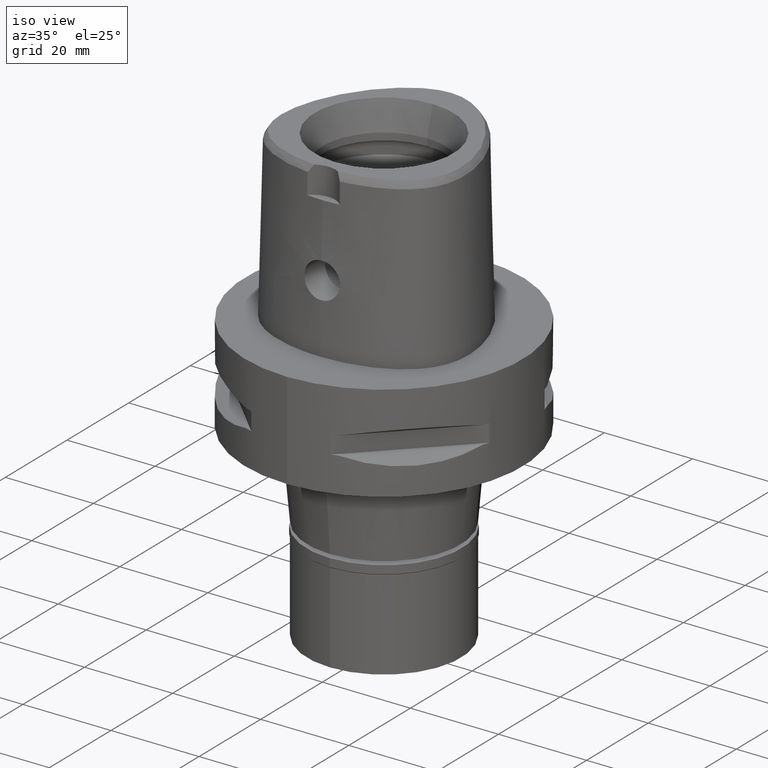
[diagram: clean part render]
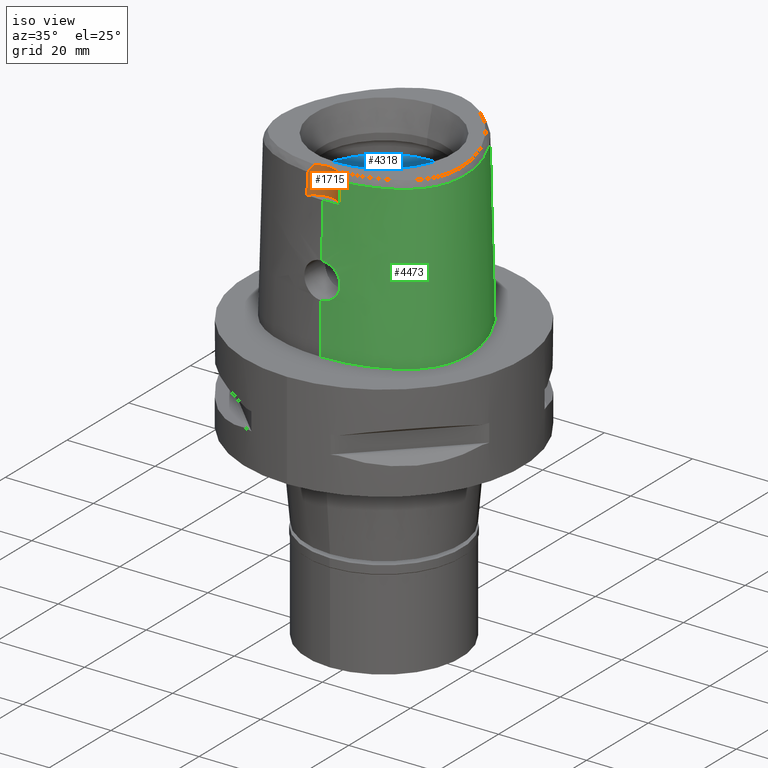
[diagram: same view with three faces highlighted in distinct colors, each labeled with its STEP entity id]
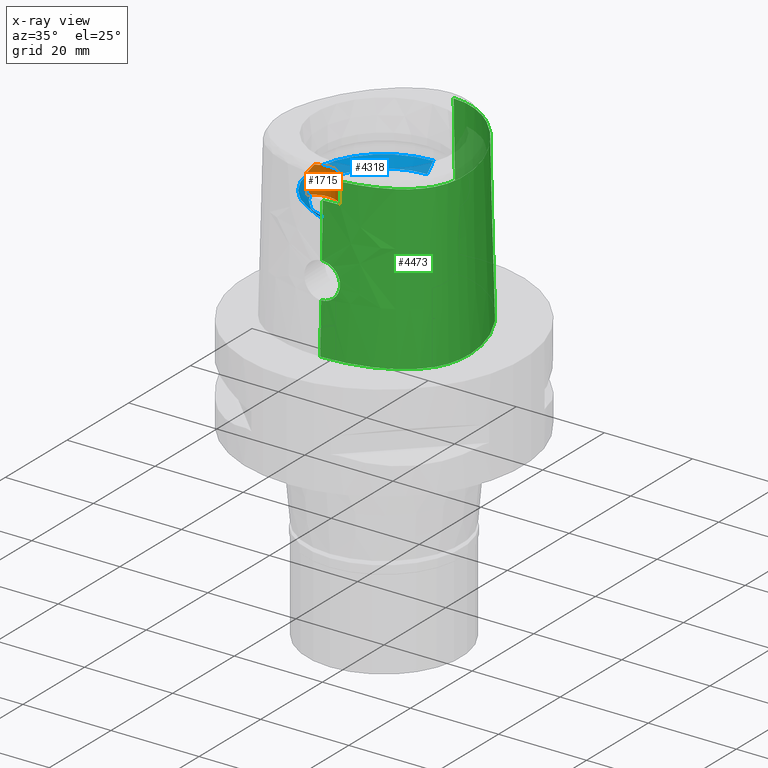
[diagram: x-ray of the same camera — body ghosted, the three highlighted faces saturated]
A machine part, iso view with three faces highlighted in distinct colors.
The next image is the same camera in x-ray (body ghosted, the three faces saturated) — at least one of them is partly hidden behind the body in this view.
Their STEP definitions:

[orange] entity #1715 — the highlighted cylindrical surface (edge-blend (fillet) strip) has radius 5 mm, axis along (0, 0, 1).
#33 = CARTESIAN_POINT ( 'NONE',  ( -3.339321438850199275, -19.25325016372376652, 37.10705438593483052 ) ) ;
#83 = ORIENTED_EDGE ( 'NONE', *, *, #710, .T. ) ;
#110 = CARTESIAN_POINT ( 'NONE',  ( -3.014271304826237952, -18.99139391531467425, 37.59976690310816139 ) ) ;
#141 = DIRECTION ( 'NONE',  ( 0.0000000000000000000, 0.0000000000000000000, 1.000000000000000000 ) ) ;
#192 = CARTESIAN_POINT ( 'NONE',  ( 3.637738219117000238, -19.56971420299000286, 36.52185956443999970 ) ) ;
#443 = EDGE_CURVE ( 'NONE', #3478, #3049, #3626, .T. ) ;
#471 = B_SPLINE_CURVE_WITH_KNOTS ( 'NONE', 3,
 ( #1375, #2826, #4320, #3962 ),
 .UNSPECIFIED., .F., .F.,
 ( 4, 4 ),
 ( 0.0000000000000000000, 1.000000000000000000 ),
 .UNSPECIFIED. ) ;
#646 = ORIENTED_EDGE ( 'NONE', *, *, #443, .T. ) ;
#650 = CARTESIAN_POINT ( 'NONE',  ( 3.736696120837999402, -19.67778323291999953, 31.80000004972999861 ) ) ;
#710 = EDGE_CURVE ( 'NONE', #4533, #3002, #2618, .T. ) ;
#718 = VERTEX_POINT ( 'NONE', #192 ) ;
#863 = EDGE_CURVE ( 'NONE', #3002, #718, #1739, .T. ) ;
#925 = CARTESIAN_POINT ( 'NONE',  ( 0.0000000000000000000, -23.00000000000000000, 38.00000000000000000 ) ) ;
#1073 = CARTESIAN_POINT ( 'NONE',  ( 3.012640326650000144, -19.00260279988999912, 37.57941311356000114 ) ) ;
#1175 = AXIS2_PLACEMENT_3D ( 'NONE', #1338, #2833, #2861 ) ;
#1293 = DIRECTION ( 'NONE',  ( 0.0000000000000000000, 1.000000000000000000, 0.0000000000000000000 ) ) ;
#1326 = ORIENTED_EDGE ( 'NONE', *, *, #863, .T. ) ;
#1338 = CARTESIAN_POINT ( 'NONE',  ( 0.0000000000000000000, -23.00000000000000000, 31.80000000000000071 ) ) ;
#1375 = CARTESIAN_POINT ( 'NONE',  ( -3.637738201363999835, -19.56971413236999879, 36.52186244848000030 ) ) ;
#1586 = ORIENTED_EDGE ( 'NONE', *, *, #2339, .T. ) ;
#1601 = CARTESIAN_POINT ( 'NONE',  ( 2.682287482605000051, -18.78036330228999873, 38.00000000000000000 ) ) ;
#1604 = CARTESIAN_POINT ( 'NONE',  ( -3.637738201363999835, -19.56971413236999879, 36.52186244848000030 ) ) ;
#1715 = ADVANCED_FACE ( 'NONE', ( #3455 ), #2678, .F. ) ;
#1739 = B_SPLINE_CURVE_WITH_KNOTS ( 'NONE', 3,
 ( #650, #3228, #2503, #3997 ),
 .UNSPECIFIED., .F., .F.,
 ( 4, 4 ),
 ( 0.0000000000000000000, 1.000000000000000000 ),
 .UNSPECIFIED. ) ;
#1916 = CARTESIAN_POINT ( 'NONE',  ( 3.538010507513000391, -19.46395528683000009, 36.71742413868999932 ) ) ;
#1986 = DIRECTION ( 'NONE',  ( 0.0000000000000000000, 0.0000000000000000000, 1.000000000000000000 ) ) ;
#2031 = CARTESIAN_POINT ( 'NONE',  ( 0.0000000000000000000, -23.00000000000000000, 38.00000000000000000 ) ) ;
#2126 = CARTESIAN_POINT ( 'NONE',  ( 2.682287482605000051, -18.78036330228999873, 38.00000000000000000 ) ) ;
#2339 = EDGE_CURVE ( 'NONE', #718, #3478, #4574, .T. ) ;
#2503 = CARTESIAN_POINT ( 'NONE',  ( 3.671249151389730514, -19.60525176641679579, 34.94790639287000289 ) ) ;
#2618 = CIRCLE ( 'NONE', #1175, 5.000000000000000000 ) ;
#2678 = CYLINDRICAL_SURFACE ( 'NONE', #4188, 5.000000000000000888 ) ;
#2826 = CARTESIAN_POINT ( 'NONE',  ( -3.671249123513567802, -19.60525173594972514, 34.94790829898666829 ) ) ;
#2833 = DIRECTION ( 'NONE',  ( 0.0000000000000000000, 0.0000000000000000000, -1.000000000000000000 ) ) ;
#2861 = DIRECTION ( 'NONE',  ( -0.7473444622798740555, 0.6644367951126772809, 0.0000000000000000000 ) ) ;
#2936 = EDGE_CURVE ( 'NONE', #3298, #4533, #471, .T. ) ;
#3002 = VERTEX_POINT ( 'NONE', #4423 ) ;
#3029 = CARTESIAN_POINT ( 'NONE',  ( -3.637738201363999835, -19.56971413236999879, 36.52186244848000030 ) ) ;
#3049 = VERTEX_POINT ( 'NONE', #3220 ) ;
#3192 = EDGE_CURVE ( 'NONE', #3049, #3298, #3884, .T. ) ;
#3220 = CARTESIAN_POINT ( 'NONE',  ( -2.682279906006999948, -18.78035848609999903, 38.00000000000000000 ) ) ;
#3228 = CARTESIAN_POINT ( 'NONE',  ( 3.704239288984441103, -19.64128042389065598, 33.37395322129999897 ) ) ;
#3232 = CARTESIAN_POINT ( 'NONE',  ( 3.332729182524000411, -19.26476283843000203, 37.08770890129000719 ) ) ;
#3298 = VERTEX_POINT ( 'NONE', #3029 ) ;
#3455 = FACE_OUTER_BOUND ( 'NONE', #4183, .T. ) ;
#3478 = VERTEX_POINT ( 'NONE', #1601 ) ;
#3502 = DIRECTION ( 'NONE',  ( 0.0000000000000000000, 1.000000000000000000, 0.0000000000000000000 ) ) ;
#3561 = CARTESIAN_POINT ( 'NONE',  ( -3.736722311398999796, -19.67781602443999844, 31.80000000000000071 ) ) ;
#3626 = CIRCLE ( 'NONE', #3709, 5.000000000000000888 ) ;
#3709 = AXIS2_PLACEMENT_3D ( 'NONE', #925, #1986, #1293 ) ;
#3884 = B_SPLINE_CURVE_WITH_KNOTS ( 'NONE', 3,
 ( #4572, #110, #33, #1604 ),
 .UNSPECIFIED., .F., .F.,
 ( 4, 4 ),
 ( 0.0000000000000000000, 1.000000000000000000 ),
 .UNSPECIFIED. ) ;
#3962 = CARTESIAN_POINT ( 'NONE',  ( -3.736722311398999796, -19.67781602443999844, 31.80000000000000071 ) ) ;
#3997 = CARTESIAN_POINT ( 'NONE',  ( 3.637738219117000238, -19.56971420299000286, 36.52185956443999970 ) ) ;
#4023 = CARTESIAN_POINT ( 'NONE',  ( 2.792917461950000124, -18.85068722589999624, 37.86662718771999891 ) ) ;
#4183 = EDGE_LOOP ( 'NONE', ( #4700, #4184, #83, #1326, #1586, #646 ) ) ;
#4184 = ORIENTED_EDGE ( 'NONE', *, *, #2936, .T. ) ;
#4188 = AXIS2_PLACEMENT_3D ( 'NONE', #2031, #141, #3502 ) ;
#4320 = CARTESIAN_POINT ( 'NONE',  ( -3.704239276368590961, -19.64128040965313460, 33.37395414949332917 ) ) ;
#4423 = CARTESIAN_POINT ( 'NONE',  ( 3.736696120837999402, -19.67778323291999953, 31.80000004972999861 ) ) ;
#4483 = CARTESIAN_POINT ( 'NONE',  ( 3.637738219117000238, -19.56971420299000286, 36.52185956443999970 ) ) ;
#4533 = VERTEX_POINT ( 'NONE', #3561 ) ;
#4572 = CARTESIAN_POINT ( 'NONE',  ( -2.682279906006999948, -18.78035848609999903, 38.00000000000000000 ) ) ;
#4574 = B_SPLINE_CURVE_WITH_KNOTS ( 'NONE', 3,
 ( #4483, #1916, #3232, #1073, #4023, #2126 ),
 .UNSPECIFIED., .F., .F.,
 ( 4, 1, 1, 4 ),
 ( 0.0000000000000000000, 0.3333333333333000081, 0.6666666666667000474, 1.000000000000000000 ),
 .UNSPECIFIED. ) ;
#4700 = ORIENTED_EDGE ( 'NONE', *, *, #3192, .T. ) ;

[blue] entity #4318 — the highlighted conical surface has half-angle 45 deg.
#175 = DIRECTION ( 'NONE',  ( 0.0000000000000000000, 1.000000000000000000, 0.0000000000000000000 ) ) ;
#290 = CARTESIAN_POINT ( 'NONE',  ( 0.0000000000000000000, 14.00000000000000000, 24.19999999999999929 ) ) ;
#389 = CARTESIAN_POINT ( 'NONE',  ( 0.0000000000000000000, -14.00000000000000000, 24.19999999999999929 ) ) ;
#461 = CARTESIAN_POINT ( 'NONE',  ( 0.0000000000000000000, 0.0000000000000000000, 26.20000000000000284 ) ) ;
#629 = LINE ( 'NONE', #290, #2033 ) ;
#801 = CONICAL_SURFACE ( 'NONE', #1959, 15.00000000000000000, 0.7853981633972997312 ) ;
#900 = ORIENTED_EDGE ( 'NONE', *, *, #4447, .T. ) ;
#1022 = CIRCLE ( 'NONE', #3010, 14.00000000000000000 ) ;
#1027 = DIRECTION ( 'NONE',  ( 0.0000000000000000000, 0.7071067811865474617, 0.7071067811865474617 ) ) ;
#1335 = CARTESIAN_POINT ( 'NONE',  ( 0.0000000000000000000, 0.0000000000000000000, 25.19999999999999929 ) ) ;
#1350 = EDGE_CURVE ( 'NONE', #4584, #3394, #1022, .T. ) ;
#1358 = ORIENTED_EDGE ( 'NONE', *, *, #1350, .F. ) ;
#1514 = DIRECTION ( 'NONE',  ( 0.0000000000000000000, -1.000000000000000000, 0.0000000000000000000 ) ) ;
#1847 = CARTESIAN_POINT ( 'NONE',  ( 0.0000000000000000000, -16.00000000000000000, 26.20000000000000284 ) ) ;
#1959 = AXIS2_PLACEMENT_3D ( 'NONE', #1335, #2742, #3113 ) ;
#2033 = VECTOR ( 'NONE', #1027, 1000.000000000000114 ) ;
#2044 = ORIENTED_EDGE ( 'NONE', *, *, #2622, .F. ) ;
#2089 = CARTESIAN_POINT ( 'NONE',  ( 0.0000000000000000000, 14.00000000000000000, 24.19999999999999929 ) ) ;
#2162 = VERTEX_POINT ( 'NONE', #1847 ) ;
#2418 = DIRECTION ( 'NONE',  ( 0.0000000000000000000, 0.0000000000000000000, 1.000000000000000000 ) ) ;
#2441 = CARTESIAN_POINT ( 'NONE',  ( 0.0000000000000000000, -14.00000000000000000, 24.19999999999999929 ) ) ;
#2622 = EDGE_CURVE ( 'NONE', #3394, #2162, #4077, .T. ) ;
#2714 = VECTOR ( 'NONE', #4508, 1000.000000000000114 ) ;
#2721 = FACE_OUTER_BOUND ( 'NONE', #2759, .T. ) ;
#2742 = DIRECTION ( 'NONE',  ( 0.0000000000000000000, 0.0000000000000000000, 1.000000000000000000 ) ) ;
#2759 = EDGE_LOOP ( 'NONE', ( #1358, #900, #3763, #2044 ) ) ;
#3010 = AXIS2_PLACEMENT_3D ( 'NONE', #3911, #2418, #175 ) ;
#3113 = DIRECTION ( 'NONE',  ( 0.0000000000000000000, 1.000000000000000000, 0.0000000000000000000 ) ) ;
#3394 = VERTEX_POINT ( 'NONE', #2441 ) ;
#3491 = AXIS2_PLACEMENT_3D ( 'NONE', #461, #4481, #1514 ) ;
#3493 = CIRCLE ( 'NONE', #3491, 16.00000000000000000 ) ;
#3640 = VERTEX_POINT ( 'NONE', #3855 ) ;
#3763 = ORIENTED_EDGE ( 'NONE', *, *, #3998, .F. ) ;
#3855 = CARTESIAN_POINT ( 'NONE',  ( 0.0000000000000000000, 16.00000000000000000, 26.20000000000000284 ) ) ;
#3911 = CARTESIAN_POINT ( 'NONE',  ( 0.0000000000000000000, 0.0000000000000000000, 24.19999999999999929 ) ) ;
#3998 = EDGE_CURVE ( 'NONE', #2162, #3640, #3493, .T. ) ;
#4077 = LINE ( 'NONE', #389, #2714 ) ;
#4318 = ADVANCED_FACE ( 'NONE', ( #2721 ), #801, .F. ) ;
#4447 = EDGE_CURVE ( 'NONE', #4584, #3640, #629, .T. ) ;
#4481 = DIRECTION ( 'NONE',  ( 0.0000000000000000000, 0.0000000000000000000, -1.000000000000000000 ) ) ;
#4508 = DIRECTION ( 'NONE',  ( 0.0000000000000000000, -0.7071067811865474617, 0.7071067811865474617 ) ) ;
#4584 = VERTEX_POINT ( 'NONE', #2089 ) ;

[green] entity #4473 — the highlighted face is a freeform B-spline surface patch.
#21 = CARTESIAN_POINT ( 'NONE',  ( 17.25769851990999726, 9.963736537435000429, 37.25232037342000524 ) ) ;
#26 = CARTESIAN_POINT ( 'NONE',  ( 1.567643479931288608, -20.15909880202845628, 19.23430287573082964 ) ) ;
#42 = CARTESIAN_POINT ( 'NONE',  ( 2.373090313646000205, 22.37624345246999980, 37.25232037342000524 ) ) ;
#66 = CARTESIAN_POINT ( 'NONE',  ( 5.105252915868999430, 22.54305024181000050, -0.7304376543807999944 ) ) ;
#70 = CARTESIAN_POINT ( 'NONE',  ( 1.721606405228959469, -20.15334541369669097, 19.16617653797909071 ) ) ;
#123 = CARTESIAN_POINT ( 'NONE',  ( 18.56841065782704092, -14.16937988888225952, -3.519438220402678480E-07 ) ) ;
#125 = ORIENTED_EDGE ( 'NONE', *, *, #3127, .T. ) ;
#161 = CARTESIAN_POINT ( 'NONE',  ( 20.93173253017243240, -10.60431640983400392, -3.519438220402678480E-07 ) ) ;
#185 = CARTESIAN_POINT ( 'NONE',  ( 20.96392248520999857, -8.820258309790999007, 24.59140103081999840 ) ) ;
#192 = CARTESIAN_POINT ( 'NONE',  ( 3.637738219117000238, -19.56971420299000286, 36.52185956443999970 ) ) ;
#219 = CARTESIAN_POINT ( 'NONE',  ( 3.511585999113924217, -20.16191773290391964, 13.47802491229509769 ) ) ;
#244 = CARTESIAN_POINT ( 'NONE',  ( 4.037422722202891556, -20.06213174819040646, 15.17473757910389054 ) ) ;
#268 = CARTESIAN_POINT ( 'NONE',  ( 14.52531264169000025, -16.95413749747000054, 11.93048168822000044 ) ) ;
#272 = CARTESIAN_POINT ( 'NONE',  ( 4.027607884482683254, -20.04257368151950303, 16.00063048732030779 ) ) ;
#294 = CARTESIAN_POINT ( 'NONE',  ( 4.047792456306170905, -20.05613555099904133, 15.36275286138569385 ) ) ;
#315 = CARTESIAN_POINT ( 'NONE',  ( -0.4439347118023999617, -19.74161835622999916, 37.25232037342000524 ) ) ;
#319 = CARTESIAN_POINT ( 'NONE',  ( 3.833646868325900403, -20.04415781675447050, 16.80908465166983135 ) ) ;
#346 = LINE ( 'NONE', #4310, #3027 ) ;
#349 = CARTESIAN_POINT ( 'NONE',  ( 2.975950211661155365, -20.09221376681365001, 18.24753197173562924 ) ) ;
#355 = CARTESIAN_POINT ( 'NONE',  ( 21.07429999882883465, -0.4408303635841155921, 36.52186680739939106 ) ) ;
#368 = CARTESIAN_POINT ( 'NONE',  ( 6.175998593184999663, -19.37631789889000089, 37.25232037342000524 ) ) ;
#377 = CARTESIAN_POINT ( 'NONE',  ( 10.91891095220982066, -18.03046396092974035, 36.52186680739939106 ) ) ;
#390 = CARTESIAN_POINT ( 'NONE',  ( 10.75753573773999960, 19.18839675703000225, -0.7304376543807999944 ) ) ;
#393 = CARTESIAN_POINT ( 'NONE',  ( 3.015068172342731501, -20.08994482624845546, 18.20431863581336174 ) ) ;
#400 = CARTESIAN_POINT ( 'NONE',  ( 2.376843874104339172, 22.39422497745032459, 36.52186680739939106 ) ) ;
#418 = CARTESIAN_POINT ( 'NONE',  ( 21.99640701531999909, -0.2778990163364000177, -0.7304376543807999944 ) ) ;
#424 = CARTESIAN_POINT ( 'NONE',  ( 1.579880197482522064, -20.15867238187385624, 19.22915299087206975 ) ) ;
#438 = CARTESIAN_POINT ( 'NONE',  ( 17.53318580747999889, 10.12278931556000039, 24.59140103081999840 ) ) ;
#442 = CARTESIAN_POINT ( 'NONE',  ( 3.755573977419236265, -20.04748421697156147, 17.01599372079265038 ) ) ;
#460 = CARTESIAN_POINT ( 'NONE',  ( -0.6834384092413999801, 22.83968695353999934, 24.59140103081999840 ) ) ;
#464 = CARTESIAN_POINT ( 'NONE',  ( 20.74942741711928562, 4.657187503000058015, -3.519438220402678480E-07 ) ) ;
#492 = CARTESIAN_POINT ( 'NONE',  ( 16.95889173139985573, -15.67838867882126408, -3.519438220402678480E-07 ) ) ;
#524 = EDGE_LOOP ( 'NONE', ( #3842, #125, #4556, #4553, #4016, #3125, #2717, #3568 ) ) ;
#530 = CARTESIAN_POINT ( 'NONE',  ( 21.55524826855592124, -8.996025393140344661, -3.519438220402678480E-07 ) ) ;
#545 = CARTESIAN_POINT ( 'NONE',  ( 2.438150610980000188, 22.68791642940999864, 24.59140103081999840 ) ) ;
#561 = EDGE_CURVE ( 'NONE', #3379, #1033, #1163, .T. ) ;
#609 = CARTESIAN_POINT ( 'NONE',  ( 3.723726504208451971, -20.12908480707795178, 13.90738601769078464 ) ) ;
#612 = EDGE_CURVE ( 'NONE', #3002, #1996, #3635, .T. ) ;
#624 = CARTESIAN_POINT ( 'NONE',  ( -1.826967432883000104E-12, -20.38876923348000147, 11.44999999999999929 ) ) ;
#631 = CARTESIAN_POINT ( 'NONE',  ( 2.841351562068689329, -20.24472911396075503, 12.61394346710859971 ) ) ;
#650 = CARTESIAN_POINT ( 'NONE',  ( 3.736696120837999402, -19.67778323291999953, 31.80000004972999861 ) ) ;
#655 = CARTESIAN_POINT ( 'NONE',  ( 16.38077690256000096, -14.94316457434999990, 37.25232037342000524 ) ) ;
#658 = CARTESIAN_POINT ( 'NONE',  ( 3.864753922560997257, -20.04313629976284616, 16.71272098199585088 ) ) ;
#664 = CARTESIAN_POINT ( 'NONE',  ( 17.27359236348909377, 9.972912859139857034, 36.52186680739939106 ) ) ;
#672 = CARTESIAN_POINT ( 'NONE',  ( 2.041042029990999821E-08, -19.88004246002000031, 31.80000004972000127 ) ) ;
#698 = CARTESIAN_POINT ( 'NONE',  ( 16.97022731071000123, -15.69280483065000098, -0.7304376543807999944 ) ) ;
#702 = CARTESIAN_POINT ( 'NONE',  ( 3.203763016644435080, -20.20322974170852248, 13.02154905151698649 ) ) ;
#718 = VERTEX_POINT ( 'NONE', #192 ) ;
#730 = CARTESIAN_POINT ( 'NONE',  ( 2.886659455803970875, -20.09735702616647046, 18.34072566158846129 ) ) ;
#750 = CARTESIAN_POINT ( 'NONE',  ( 21.31039828220000132, -4.105938497318000202, 37.25232037342000524 ) ) ;
#772 = CARTESIAN_POINT ( 'NONE',  ( -0.7217521647326999856, 23.47150798632999980, -0.7304376543807999944 ) ) ;
#803 = CARTESIAN_POINT ( 'NONE',  ( 7.580410839837000481, 21.33037926236000104, -0.7304376543807999944 ) ) ;
#825 = CARTESIAN_POINT ( 'NONE',  ( 10.14358072572000147, 18.45723414120000072, 37.25232037342000524 ) ) ;
#831 = CARTESIAN_POINT ( 'NONE',  ( 22.05732875196926202, -6.847636720006784472, -3.519438220402678480E-07 ) ) ;
#863 = EDGE_CURVE ( 'NONE', #3002, #718, #1739, .T. ) ;
#882 = CARTESIAN_POINT ( 'NONE',  ( 2.113823673588550722, -20.67500000879218547, -3.519438220402678480E-07 ) ) ;
#917 = CARTESIAN_POINT ( 'NONE',  ( 13.69241976179999831, 15.03666389207999821, 37.25232037342000524 ) ) ;
#927 = VERTEX_POINT ( 'NONE', #3716 ) ;
#971 = VERTEX_POINT ( 'NONE', #2619 ) ;
#983 = CARTESIAN_POINT ( 'NONE',  ( 0.5087515307362648898, -20.38532974001412512, 11.47346035737002445 ) ) ;
#1004 = CARTESIAN_POINT ( 'NONE',  ( 0.8966116947936206838, -20.37501125961648540, 11.54830101447698354 ) ) ;
#1031 = CARTESIAN_POINT ( 'NONE',  ( 3.924300776181928185, -20.09314702527190732, 14.46423348894043670 ) ) ;
#1033 = VERTEX_POINT ( 'NONE', #4502 ) ;
#1043 = CARTESIAN_POINT ( 'NONE',  ( 16.39211273426354509, -14.95758104716219883, 36.52186680739939106 ) ) ;
#1054 = CARTESIAN_POINT ( 'NONE',  ( -0.4561077449676999573, -20.69106755557000099, -0.7304376543807999944 ) ) ;
#1057 = CARTESIAN_POINT ( 'NONE',  ( 3.792886798746447852, -20.04581592835240755, 16.92075268099871721 ) ) ;
#1078 = CARTESIAN_POINT ( 'NONE',  ( 2.567016208068159333, -20.27200364631736562, 12.36657754867036729 ) ) ;
#1084 = CARTESIAN_POINT ( 'NONE',  ( -1.463675025324000219E-11, 22.56201468012000078, 36.52186680743999858 ) ) ;
#1110 = CARTESIAN_POINT ( 'NONE',  ( 20.09619608769044063, -10.23243839429730784, 36.52186680739939106 ) ) ;
#1124 = CARTESIAN_POINT ( 'NONE',  ( 1.836480382118000021, -19.76356519391000077, 37.25232037342000524 ) ) ;
#1146 = CARTESIAN_POINT ( 'NONE',  ( 20.36913774449000059, -10.35391843577999893, 24.59140103081999840 ) ) ;
#1163 = B_SPLINE_CURVE_WITH_KNOTS ( 'NONE', 3,
 ( #3090, #882, #1224, #2677, #3797, #492, #123, #2345, #1967, #161, #530, #831, #3382, #1559, #464, #3015, #4582, #3827, #2363, #4171, #1657, #1616, #4515 ),
 .UNSPECIFIED., .F., .F.,
 ( 4, 1, 1, 1, 1, 1, 1, 1, 1, 1, 1, 1, 1, 1, 1, 1, 1, 1, 1, 1, 4 ),
 ( 0.0000000000000000000, 0.08333333333348000305, 0.1666666666668000230, 0.2083333333334000115, 0.2500000000000999756, 0.2916666666666999919, 0.3125000000000000000, 0.3333333333333000081, 0.3541666666666999919, 0.3750000000000000000, 0.4166666666666999919, 0.4583333333332000326, 0.4999999999998999689, 0.5833333333332000326, 0.6666666666664999852, 0.7499999999998000488, 0.8333333333329999704, 0.8749999999997000177, 0.9166666666664000651, 0.9583333333329999704, 1.000000000000000000 ),
 .UNSPECIFIED. ) ;
#1170 = CARTESIAN_POINT ( 'NONE',  ( 21.57281239202000123, -9.001246195006000761, -0.7304376543807999944 ) ) ;
#1197 = CARTESIAN_POINT ( 'NONE',  ( 20.65879050128999950, -10.48283620274999883, 11.93048168822000044 ) ) ;
#1201 = CARTESIAN_POINT ( 'NONE',  ( 3.670597385436424442, -20.05147252372691113, 17.22404581896334363 ) ) ;
#1224 = CARTESIAN_POINT ( 'NONE',  ( 6.341471020775136580, -20.29812500871732084, -3.519438220402679009E-07 ) ) ;
#1286 = CARTESIAN_POINT ( 'NONE',  ( 20.46725045963000156, 4.555493654929000158, 11.93048168822000044 ) ) ;
#1305 = CARTESIAN_POINT ( 'NONE',  ( 19.86834428180999979, 4.339653657228000228, 37.25232037342000524 ) ) ;
#1347 = CARTESIAN_POINT ( 'NONE',  ( 3.603976443201508673, -20.14812720047174821, 13.65118046636059113 ) ) ;
#1369 = CARTESIAN_POINT ( 'NONE',  ( 4.044273721195485116, -20.05891866814916824, 15.26936688914002538 ) ) ;
#1386 = FACE_OUTER_BOUND ( 'NONE', #524, .T. ) ;
#1388 = CARTESIAN_POINT ( 'NONE',  ( 1.534316080845153474, -20.34781749051813904, 11.75187837086506093 ) ) ;
#1395 = EDGE_CURVE ( 'NONE', #1932, #971, #4450, .T. ) ;
#1397 = CARTESIAN_POINT ( 'NONE',  ( 20.67704204633940535, -8.734985285293644708, 36.52186680739939106 ) ) ;
#1410 = CARTESIAN_POINT ( 'NONE',  ( 19.15132525901000093, -12.46323152247000010, 24.59140103081999840 ) ) ;
#1414 = CARTESIAN_POINT ( 'NONE',  ( 3.771386012542129684, -20.04676156959495970, 16.97636602834736053 ) ) ;
#1437 = CARTESIAN_POINT ( 'NONE',  ( -0.4479923895242000076, -20.05810142267999652, 24.59140103081999840 ) ) ;
#1441 = CARTESIAN_POINT ( 'NONE',  ( 2.711691569780576572, -20.25804592810637672, 12.49155873507324621 ) ) ;
#1458 = CARTESIAN_POINT ( 'NONE',  ( 19.54161177586999898, -11.28235481743000079, 37.25232037342000524 ) ) ;
#1459 = B_SPLINE_CURVE_WITH_KNOTS ( 'NONE', 3,
 ( #1084, #1469, #400, #3294, #1811, #3273, #2852, #664, #3662, #355, #2880, #2923, #1397, #1110, #2568, #4066, #2209, #1043, #3685, #377, #1853, #2136, #3612 ),
 .UNSPECIFIED., .F., .F.,
 ( 4, 1, 1, 1, 1, 1, 1, 1, 1, 1, 1, 1, 1, 1, 1, 1, 1, 1, 1, 1, 4 ),
 ( 0.0000000000000000000, 0.04382683003322433712, 0.08765366006602780258, 0.1314804900989366143, 0.1753073201318454122, 0.2629609801974524541, 0.3506146402631648562, 0.4382683003288770918, 0.5259219603945894939, 0.5697487904274981529, 0.6135756204601965358, 0.6574024504931053059, 0.6793158655095070664, 0.7012292805260141870, 0.7231426955424158365, 0.7450561105588175970, 0.7888829405916213400, 0.8327097706245299991, 0.8765366006573335200, 0.9641902607230669053, 1.000000000000000000 ),
 .UNSPECIFIED. ) ;
#1469 = CARTESIAN_POINT ( 'NONE',  ( 0.7901461619532076375, 22.56201467849357911, 36.52186680739939817 ) ) ;
#1483 = CARTESIAN_POINT ( 'NONE',  ( 14.36818031250000161, -16.67825726519999918, 24.59140103081999840 ) ) ;
#1513 = CARTESIAN_POINT ( 'NONE',  ( 10.55288406706999993, 18.94467588509000322, 11.93048168822000044 ) ) ;
#1535 = CARTESIAN_POINT ( 'NONE',  ( -0.7025952869871000539, 23.15559746994000179, 11.93048168822000044 ) ) ;
#1539 = CARTESIAN_POINT ( 'NONE',  ( 2.583378382920984873, -20.11475760907390509, 18.64739958325358060 ) ) ;
#1556 = CARTESIAN_POINT ( 'NONE',  ( 4.750826189423999146, 21.65775798043000222, 37.25232037342000524 ) ) ;
#1559 = CARTESIAN_POINT ( 'NONE',  ( 21.97832648657396248, -0.2810937484606424452, -3.519438220402678480E-07 ) ) ;
#1569 = VECTOR ( 'NONE', #4329, 1000.000000000000114 ) ;
#1616 = CARTESIAN_POINT ( 'NONE',  ( 0.8548392429320488262, 23.47500000880000215, -3.519438220402678480E-07 ) ) ;
#1657 = CARTESIAN_POINT ( 'NONE',  ( 2.564517728765120186, 23.29328125865878718, -3.519438220402678480E-07 ) ) ;
#1670 = CARTESIAN_POINT ( 'NONE',  ( 21.26836743862000034, -8.910752252398999929, 11.93048168822000044 ) ) ;
#1697 = CARTESIAN_POINT ( 'NONE',  ( 3.736696120837999402, -19.67778323291999953, 31.80000004972999861 ) ) ;
#1705 = CARTESIAN_POINT ( 'NONE',  ( 3.632834779428071315, -20.14369342289558062, 13.70863273807749927 ) ) ;
#1733 = CARTESIAN_POINT ( 'NONE',  ( 2.948868927777127169, -20.23326953825477403, 12.72080257443722218 ) ) ;
#1739 = B_SPLINE_CURVE_WITH_KNOTS ( 'NONE', 3,
 ( #650, #3228, #2503, #3997 ),
 .UNSPECIFIED., .F., .F.,
 ( 4, 4 ),
 ( 0.0000000000000000000, 1.000000000000000000 ),
 .UNSPECIFIED. ) ;
#1753 = CARTESIAN_POINT ( 'NONE',  ( 20.94844325809000196, -10.61175396972999962, -0.7304376543807999944 ) ) ;
#1756 = CARTESIAN_POINT ( 'NONE',  ( 3.953259643468217011, -20.04133012920760137, 16.38976245724405345 ) ) ;
#1772 = CARTESIAN_POINT ( 'NONE',  ( -0.6657939546889000137, -19.73734223026999857, 37.25232037342000524 ) ) ;
#1774 = CARTESIAN_POINT ( 'NONE',  ( 3.325306337116460842, -20.18751101871034592, 13.18704982732561248 ) ) ;
#1798 = CARTESIAN_POINT ( 'NONE',  ( 14.68244497087999889, -17.23001772974000190, -0.7304376543807999944 ) ) ;
#1811 = CARTESIAN_POINT ( 'NONE',  ( 7.108589361576983734, 20.52412316394618941, 36.52186680739939106 ) ) ;
#1823 = CARTESIAN_POINT ( 'NONE',  ( 6.288476582118000202, -20.00290573232999947, 11.93048168822000044 ) ) ;
#1826 = CARTESIAN_POINT ( 'NONE',  ( 3.751591194192677836, -20.04766969730218662, 17.02581310133406589 ) ) ;
#1843 = CARTESIAN_POINT ( 'NONE',  ( 11.23887130230999887, -18.91049775954000367, -0.7304376543807999944 ) ) ;
#1853 = CARTESIAN_POINT ( 'NONE',  ( 7.300578979383887557, -19.07170738130822230, 36.52186680739939106 ) ) ;
#1867 = CARTESIAN_POINT ( 'NONE',  ( 20.16779737072000245, 4.447573656079000237, 24.59140103081999840 ) ) ;
#1872 = CARTESIAN_POINT ( 'NONE',  ( 3.566550373950287067, -20.05748105839062490, 17.43706565681205944 ) ) ;
#1892 = CARTESIAN_POINT ( 'NONE',  ( 7.259695449652999955, 20.78233566726000348, 24.59140103081999840 ) ) ;
#1897 = CARTESIAN_POINT ( 'NONE',  ( 1.682593708784102526, -20.15487016635301032, 19.18413263587381223 ) ) ;
#1913 = CARTESIAN_POINT ( 'NONE',  ( 7.099337754561000580, 20.50831386970999759, 37.25232037342000524 ) ) ;
#1917 = CARTESIAN_POINT ( 'NONE',  ( 3.274926665392455138, -20.07472025487568246, 17.88722119739921723 ) ) ;
#1932 = VERTEX_POINT ( 'NONE', #624 ) ;
#1935 = CARTESIAN_POINT ( 'NONE',  ( -0.6642815314958000483, 22.52377643714000044, 37.25232037342000524 ) ) ;
#1936 = CARTESIAN_POINT ( 'NONE',  ( 6.838609506018792443E-09, -20.08420636276242277, 23.63333344114128920 ) ) ;
#1967 = CARTESIAN_POINT ( 'NONE',  ( 20.34961799320004516, -11.74885742627617091, -3.519438220402678480E-07 ) ) ;
#1996 = VERTEX_POINT ( 'NONE', #672 ) ;
#2002 = EDGE_CURVE ( 'NONE', #1932, #3379, #4699, .T. ) ;
#2020 = CARTESIAN_POINT ( 'NONE',  ( -0.4685451971773999524, 23.16976075642000055, 11.93048168822000044 ) ) ;
#2030 = CARTESIAN_POINT ( 'NONE',  ( 2.503154195450401076, -19.81241979351012361, 31.80000012137777077 ) ) ;
#2081 = CARTESIAN_POINT ( 'NONE',  ( 3.729708922353295097, -20.12808847094932574, 13.92144695074586025 ) ) ;
#2105 = CARTESIAN_POINT ( 'NONE',  ( 4.049418847093934737, -20.05437568687474581, 15.42471688643932382 ) ) ;
#2127 = CARTESIAN_POINT ( 'NONE',  ( 18.35112155619999896, -13.96357037257999956, 11.93048168822000044 ) ) ;
#2130 = CARTESIAN_POINT ( 'NONE',  ( 2.624939756680496838, -20.26655316160304920, 12.41484986907755150 ) ) ;
#2136 = CARTESIAN_POINT ( 'NONE',  ( 4.467522181836838691, -19.48130276147620776, 36.52186680739939817 ) ) ;
#2147 = CARTESIAN_POINT ( 'NONE',  ( -0.6840631436170000468, -20.68668116328000295, -0.7304376543807999944 ) ) ;
#2178 = CARTESIAN_POINT ( 'NONE',  ( 1.561701417396871738, -20.15930341713675844, 19.23678932674767239 ) ) ;
#2200 = CARTESIAN_POINT ( 'NONE',  ( -0.6718836843316000618, -20.05378854127000210, 24.59140103081999840 ) ) ;
#2204 = CARTESIAN_POINT ( 'NONE',  ( 2.297699941746913055, -20.12840054679260149, 18.84585608873927853 ) ) ;
#2209 = CARTESIAN_POINT ( 'NONE',  ( 17.90324024157999006, -13.53935104436585313, 36.52186680739939106 ) ) ;
#2221 = CARTESIAN_POINT ( 'NONE',  ( 2.568271205648999800, 23.31126238327999900, -0.7304376543807999944 ) ) ;
#2225 = CARTESIAN_POINT ( 'NONE',  ( 2.884234419356145551, -20.09749625558477604, 18.34319101387002249 ) ) ;
#2243 = CARTESIAN_POINT ( 'NONE',  ( 21.36961505010999929, -0.3886497833393999790, 24.59140103081999840 ) ) ;
#2267 = CARTESIAN_POINT ( 'NONE',  ( 21.62788404305000256, -4.104079498228999867, 24.59140103081999840 ) ) ;
#2288 = CARTESIAN_POINT ( 'NONE',  ( 0.6155340740079000561, 23.51883497691000002, -0.7304376543807999944 ) ) ;
#2345 = CARTESIAN_POINT ( 'NONE',  ( 19.64947366576182830, -12.82525391143864013, -3.519438220402678480E-07 ) ) ;
#2363 = CARTESIAN_POINT ( 'NONE',  ( 7.571159438808491515, 21.31457032011850572, -3.519438220402678480E-07 ) ) ;
#2438 = CARTESIAN_POINT ( 'NONE',  ( 1.524357715489996545, -20.34835182637561601, 11.74781298389268436 ) ) ;
#2459 = CARTESIAN_POINT ( 'NONE',  ( 2.755033359777194768, -20.25370943475173036, 12.53098791197496631 ) ) ;
#2484 = CARTESIAN_POINT ( 'NONE',  ( 10.91263708051000059, -18.01320801298999896, 37.25232037342000524 ) ) ;
#2487 = CARTESIAN_POINT ( 'NONE',  ( 3.921908031808776229, -20.04162622780743419, 16.51941043673691567 ) ) ;
#2503 = CARTESIAN_POINT ( 'NONE',  ( 3.671249151389730514, -19.60525176641679579, 34.94790639287000289 ) ) ;
#2508 = CARTESIAN_POINT ( 'NONE',  ( 19.66427014574999887, -12.83600704636999978, -0.7304376543807999944 ) ) ;
#2509 = DIRECTION ( 'NONE',  ( 2.239957748160960195E-12, 0.02499051290944955331, -0.9996876883629820520 ) ) ;
#2511 = CARTESIAN_POINT ( 'NONE',  ( 4.000511561325166277, -20.07456186655893049, 14.85500429493886365 ) ) ;
#2528 = CARTESIAN_POINT ( 'NONE',  ( -0.6779734139742999988, -20.37023485227999586, 11.93048168822000044 ) ) ;
#2532 = CARTESIAN_POINT ( 'NONE',  ( 2.393838366598201706, -20.28769208760995113, 12.22988199623816108 ) ) ;
#2568 = CARTESIAN_POINT ( 'NONE',  ( 19.55745538000856953, -11.29150212657910402, 36.52186680739939106 ) ) ;
#2599 = CARTESIAN_POINT ( 'NONE',  ( 13.93560868105000061, 15.24203792875999852, 24.59140103081999840 ) ) ;
#2600 = CARTESIAN_POINT ( 'NONE',  ( 6.818614578713344982E-09, -19.98212988583485483, 27.71666688228254216 ) ) ;
#2619 = CARTESIAN_POINT ( 'NONE',  ( 0.0000000000000000000, -20.18628283968999781, 19.55000000000000071 ) ) ;
#2624 = CARTESIAN_POINT ( 'NONE',  ( 21.13154883260999739, -6.714587069843999778, 37.25232037342000524 ) ) ;
#2651 = CARTESIAN_POINT ( 'NONE',  ( 18.08416038262999948, 10.44089487182000120, -0.7304376543807999944 ) ) ;
#2674 = CARTESIAN_POINT ( 'NONE',  ( 2.041042029990999821E-08, -19.88004246002000031, 31.80000004972000127 ) ) ;
#2677 = CARTESIAN_POINT ( 'NONE',  ( 11.23259757029823014, -18.89324219580533537, -3.519438220402678480E-07 ) ) ;
#2717 = ORIENTED_EDGE ( 'NONE', *, *, #2002, .T. ) ;
#2793 = CARTESIAN_POINT ( 'NONE',  ( -1.826967432883000104E-12, -20.38876923348000147, 11.44999999999999929 ) ) ;
#2800 = CARTESIAN_POINT ( 'NONE',  ( -1.826967432883000104E-12, -20.38876923348000147, 11.44999999999999929 ) ) ;
#2820 = CARTESIAN_POINT ( 'NONE',  ( 1.316421966468894977, -20.35878114982438802, 11.66885636529475256 ) ) ;
#2838 = CARTESIAN_POINT ( 'NONE',  ( 1.870063862862999970, -20.39691452781000081, 11.93048168822000044 ) ) ;
#2841 = CARTESIAN_POINT ( 'NONE',  ( 3.163129671095931794, -20.20825321968238697, 12.96989580161385369 ) ) ;
#2852 = CARTESIAN_POINT ( 'NONE',  ( 13.70645019738495840, 15.04851265230045065, 36.52186680739939106 ) ) ;
#2869 = CARTESIAN_POINT ( 'NONE',  ( 19.81622826543999949, -11.44090472220999999, 24.59140103081999840 ) ) ;
#2872 = CARTESIAN_POINT ( 'NONE',  ( 0.2513178043693615749, -20.38876923348000503, 11.44999999999999929 ) ) ;
#2880 = CARTESIAN_POINT ( 'NONE',  ( 21.32871516740384976, -4.105831245034257115, 36.52186680739939106 ) ) ;
#2896 = CARTESIAN_POINT ( 'NONE',  ( 2.279206475143934707, -20.29726703133780319, 12.14958802852537367 ) ) ;
#2913 = CARTESIAN_POINT ( 'NONE',  ( 18.89485281564000019, -12.27684376052000026, 37.25232037342000524 ) ) ;
#2923 = CARTESIAN_POINT ( 'NONE',  ( 21.14970177530687323, -6.717195943318910345, 36.52186680739939106 ) ) ;
#2935 = CARTESIAN_POINT ( 'NONE',  ( 14.21104798330000030, -16.40237703292000404, 37.25232037342000524 ) ) ;
#2964 = CARTESIAN_POINT ( 'NONE',  ( 17.80867309505000051, 10.28184209368999902, 11.93048168822000044 ) ) ;
#2987 = CARTESIAN_POINT ( 'NONE',  ( 21.05621906750999983, -0.4440251668407999563, 37.25232037342000524 ) ) ;
#2991 = CARTESIAN_POINT ( 'NONE',  ( 1.850515310469470043, -20.14814249513660727, 19.10377707056542818 ) ) ;
#3002 = VERTEX_POINT ( 'NONE', #4423 ) ;
#3012 = CARTESIAN_POINT ( 'NONE',  ( 2.503210908314000172, 22.99958940634000015, 11.93048168822000044 ) ) ;
#3015 = CARTESIAN_POINT ( 'NONE',  ( 18.06826689292752164, 10.43171875442610030, -3.519438220402678480E-07 ) ) ;
#3027 = VECTOR ( 'NONE', #2509, 1000.000000000000114 ) ;
#3042 = CARTESIAN_POINT ( 'NONE',  ( 20.65947753180000390, -8.729764367183999951, 37.25232037342000524 ) ) ;
#3090 = CARTESIAN_POINT ( 'NONE',  ( -1.465435788041999934E-11, -20.67499999999999716, 1.633878217906999793E-13 ) ) ;
#3125 = ORIENTED_EDGE ( 'NONE', *, *, #1395, .F. ) ;
#3126 = CARTESIAN_POINT ( 'NONE',  ( -0.4431573407612000581, 22.53713874477000090, 37.25232037342000524 ) ) ;
#3127 = EDGE_CURVE ( 'NONE', #927, #718, #1459, .T. ) ;
#3193 = CARTESIAN_POINT ( 'NONE',  ( 4.019030320121493638, -20.06913119212766716, 14.98404767005685478 ) ) ;
#3214 = CARTESIAN_POINT ( 'NONE',  ( 3.442230566568433847, -20.17176368746357440, 13.36150714886689350 ) ) ;
#3228 = CARTESIAN_POINT ( 'NONE',  ( 3.704239288984441103, -19.64128042389065598, 33.37395322129999897 ) ) ;
#3233 = CARTESIAN_POINT ( 'NONE',  ( 16.77374384132999907, -15.44292474522000091, 11.93048168822000044 ) ) ;
#3236 = CARTESIAN_POINT ( 'NONE',  ( 4.050842720081512027, -20.04624518054259141, 15.74101907652574539 ) ) ;
#3264 = CARTESIAN_POINT ( 'NONE',  ( 16.57726037194999691, -15.19304465977999818, 24.59140103081999840 ) ) ;
#3267 = CARTESIAN_POINT ( 'NONE',  ( 1.428592104154088993, -20.35332632815585185, 11.71005578160097826 ) ) ;
#3273 = CARTESIAN_POINT ( 'NONE',  ( 10.15538781007051483, 18.47129526703178470, 36.52186680739939106 ) ) ;
#3286 = CARTESIAN_POINT ( 'NONE',  ( 20.36546124458000051, -11.75800453175999927, -0.7304376543807999944 ) ) ;
#3289 = CARTESIAN_POINT ( 'NONE',  ( 3.139123092388822922, -20.08270807397856217, 18.06003391346363429 ) ) ;
#3294 = CARTESIAN_POINT ( 'NONE',  ( 4.757642236485000176, 21.67478320247475665, 36.52186680739939106 ) ) ;
#3306 = CARTESIAN_POINT ( 'NONE',  ( 6.344715576585000072, -20.31619964905000231, -0.7304376543807999944 ) ) ;
#3329 = CARTESIAN_POINT ( 'NONE',  ( 0.5826623303163001033, 22.88447442312000035, 24.59140103081999840 ) ) ;
#3336 = CARTESIAN_POINT ( 'NONE',  ( 3.091191640007693309, -20.08551573943389457, 18.11781124534847720 ) ) ;
#3356 = CARTESIAN_POINT ( 'NONE',  ( 4.868968431572000100, 21.95285540088999809, 24.59140103081999840 ) ) ;
#3360 = CARTESIAN_POINT ( 'NONE',  ( 1.557928352114629877, -20.15943256128280581, 19.23836383805013384 ) ) ;
#3378 = CARTESIAN_POINT ( 'NONE',  ( 20.76670354854000067, 4.663413653779999279, -0.7304376543807999944 ) ) ;
#3379 = VERTEX_POINT ( 'NONE', #3933 ) ;
#3382 = CARTESIAN_POINT ( 'NONE',  ( 22.24453908737247332, -4.100468749947764557, -3.519438220402678480E-07 ) ) ;
#3383 = CARTESIAN_POINT ( 'NONE',  ( 2.928417867131441366, -20.09495605916598748, 18.29777786823272123 ) ) ;
#3403 = CARTESIAN_POINT ( 'NONE',  ( 21.68301103271999963, -0.3332743998379000261, 11.93048168822000044 ) ) ;
#3495 = CARTESIAN_POINT ( 'NONE',  ( -0.4558512689693000053, 22.85344975059999939, 24.59140103081999840 ) ) ;
#3529 = CARTESIAN_POINT ( 'NONE',  ( 3.037532553903743882, -20.22328996317165206, 12.81799286589134823 ) ) ;
#3552 = CARTESIAN_POINT ( 'NONE',  ( 3.845860894269472752, -20.10859464497285387, 14.19872868901472174 ) ) ;
#3568 = ORIENTED_EDGE ( 'NONE', *, *, #561, .T. ) ;
#3580 = CARTESIAN_POINT ( 'NONE',  ( 1.853272122491000040, -20.08023986086000079, 24.59140103081999840 ) ) ;
#3582 = CARTESIAN_POINT ( 'NONE',  ( 4.049868334437865869, -20.05357338911061049, 15.45438420366725119 ) ) ;
#3612 = CARTESIAN_POINT ( 'NONE',  ( 3.637738219117000238, -19.56971420299000286, 36.52185956443999970 ) ) ;
#3622 = CARTESIAN_POINT ( 'NONE',  ( -0.4520500672458999669, -20.37458448912000009, 11.93048168822000044 ) ) ;
#3625 = CARTESIAN_POINT ( 'NONE',  ( 1.484501164526380368, -20.35045784434739602, 11.73180785645017643 ) ) ;
#3635 = B_SPLINE_CURVE_WITH_KNOTS ( 'NONE', 3,
 ( #1697, #2030, #4260, #4722 ),
 .UNSPECIFIED., .F., .F.,
 ( 4, 4 ),
 ( 0.0000000000000000000, 1.000000000000000000 ),
 .UNSPECIFIED. ) ;
#3652 = CARTESIAN_POINT ( 'NONE',  ( 18.12052904698999711, -13.74516028010000035, 24.59140103081999840 ) ) ;
#3662 = CARTESIAN_POINT ( 'NONE',  ( 19.88562079789317139, 4.345879946636573621, 36.52186680739939106 ) ) ;
#3675 = CARTESIAN_POINT ( 'NONE',  ( 1.886855603234999901, -20.71358919476000082, -0.7304376543807999944 ) ) ;
#3679 = CARTESIAN_POINT ( 'NONE',  ( 1.030765520131602164, -20.17735599388189982, 19.45771471319597623 ) ) ;
#3685 = CARTESIAN_POINT ( 'NONE',  ( 14.22011350746102387, -16.41829354688003662, 36.52186680739939106 ) ) ;
#3698 = CARTESIAN_POINT ( 'NONE',  ( 22.07548129048999996, -6.850245535395000473, -0.7304376543807999944 ) ) ;
#3702 = CARTESIAN_POINT ( 'NONE',  ( 1.605758537264378560, -20.15775078181249924, 19.21813315662351940 ) ) ;
#3716 = CARTESIAN_POINT ( 'NONE',  ( -1.463675025324000219E-11, 22.56201468012000078, 36.52186680743999858 ) ) ;
#3722 = CARTESIAN_POINT ( 'NONE',  ( 21.94536980389999670, -4.102220499140999621, 11.93048168822000044 ) ) ;
#3729 = CARTESIAN_POINT ( 'NONE',  ( 2.904172583272469854, -20.09635100409874298, 18.32284545437682510 ) ) ;
#3747 = CARTESIAN_POINT ( 'NONE',  ( 22.26285556475000149, -4.100361500052000174, -0.7304376543807999944 ) ) ;
#3769 = CARTESIAN_POINT ( 'NONE',  ( -0.4812391253855000106, 23.48607176224000170, -0.7304376543807999944 ) ) ;
#3785 = EDGE_CURVE ( 'NONE', #927, #1033, #346, .T. ) ;
#3794 = CARTESIAN_POINT ( 'NONE',  ( 0.0000000000000000000, -20.18628283968999781, 19.55000000000000071 ) ) ;
#3797 = CARTESIAN_POINT ( 'NONE',  ( 14.67337964856386812, -17.21410157016247666, -3.519438220402678480E-07 ) ) ;
#3827 = CARTESIAN_POINT ( 'NONE',  ( 10.74572891627478732, 19.17433594426985977, -3.519438220402678480E-07 ) ) ;
#3842 = ORIENTED_EDGE ( 'NONE', *, *, #3785, .F. ) ;
#3863 = CARTESIAN_POINT ( 'NONE',  ( 0.5990982021621000797, 23.20165470002000063, 11.93048168822000044 ) ) ;
#3919 = EDGE_CURVE ( 'NONE', #1996, #971, #4284, .T. ) ;
#3932 = CARTESIAN_POINT ( 'NONE',  ( 3.714672160221192954, -20.13058695501625550, 13.88627057557268252 ) ) ;
#3933 = CARTESIAN_POINT ( 'NONE',  ( -1.465435788041999934E-11, -20.67499999999999716, 1.633878217906999793E-13 ) ) ;
#3954 = CARTESIAN_POINT ( 'NONE',  ( 1.731125023576418620, -20.33718559577235396, 11.83280940399677661 ) ) ;
#3983 = CARTESIAN_POINT ( 'NONE',  ( 2.849868961132530298, -20.24382510866817597, 12.62235958625939780 ) ) ;
#3997 = CARTESIAN_POINT ( 'NONE',  ( 3.637738219117000238, -19.56971420299000286, 36.52185956443999970 ) ) ;
#4007 = CARTESIAN_POINT ( 'NONE',  ( 1.508420850606395192, -20.34919826422073896, 11.74137786069494638 ) ) ;
#4016 = ORIENTED_EDGE ( 'NONE', *, *, #3919, .T. ) ;
#4024 = CARTESIAN_POINT ( 'NONE',  ( 6.232237587651999533, -19.68961181561000018, 24.59140103081999840 ) ) ;
#4066 = CARTESIAN_POINT ( 'NONE',  ( 18.90964962507984737, -12.28759713487575134, 36.52186680739939106 ) ) ;
#4078 = CARTESIAN_POINT ( 'NONE',  ( 4.987110673721000254, 22.24795282135000463, 11.93048168822000044 ) ) ;
#4099 = CARTESIAN_POINT ( 'NONE',  ( 7.420053144745000218, 21.05635746481000226, 11.93048168822000044 ) ) ;
#4104 = CARTESIAN_POINT ( 'NONE',  ( 1.557528585400485222, -20.15944609186948711, 19.23852986055522862 ) ) ;
#4124 = CARTESIAN_POINT ( 'NONE',  ( 14.42198651954000077, 15.65278600211999738, -0.7304376543807999944 ) ) ;
#4130 = CARTESIAN_POINT ( 'NONE',  ( 3.354800088553786086, -20.06997527849127749, 17.77273350791968554 ) ) ;
#4147 = CARTESIAN_POINT ( 'NONE',  ( 14.17879760029000025, 15.44741196544000061, 11.93048168822000044 ) ) ;
#4153 = CARTESIAN_POINT ( 'NONE',  ( 2.893678509312381575, -20.09695393737491642, 18.33357544154613450 ) ) ;
#4171 = CARTESIAN_POINT ( 'NONE',  ( 5.098437020567613054, 22.52602539883262622, -3.519438220402678480E-07 ) ) ;
#4215 = B_SPLINE_SURFACE_WITH_KNOTS ( 'NONE', 3, 3, ( 
 ( #2147, #2528, #2200, #1772 ),
 ( #1054, #3622, #1437, #315 ),
 ( #3675, #2838, #3580, #1124 ),
 ( #3306, #1823, #4024, #368 ),
 ( #1843, #4334, #4800, #2484 ),
 ( #1798, #268, #1483, #2935 ),
 ( #698, #3233, #3264, #655 ),
 ( #4728, #2127, #3652, #4760 ),
 ( #2508, #4436, #1410, #2913 ),
 ( #3286, #4781, #2869, #1458 ),
 ( #1753, #1197, #1146, #4480 ),
 ( #1170, #1670, #185, #3042 ),
 ( #3698, #4460, #4232, #2624 ),
 ( #3747, #3722, #2267, #750 ),
 ( #418, #3403, #2243, #2987 ),
 ( #3378, #1286, #1867, #1305 ),
 ( #2651, #2964, #438, #21 ),
 ( #4124, #4147, #2599, #917 ),
 ( #390, #1513, #4509, #825 ),
 ( #803, #4099, #1892, #1913 ),
 ( #66, #4078, #3356, #1556 ),
 ( #2221, #3012, #545, #42 ),
 ( #2288, #3863, #3329, #4618 ),
 ( #3769, #2020, #3495, #3126 ),
 ( #772, #1535, #460, #1935 ) ),
 .UNSPECIFIED., .F., .F., .F.,
 ( 4, 1, 1, 1, 1, 1, 1, 1, 1, 1, 1, 1, 1, 1, 1, 1, 1, 1, 1, 1, 1, 1, 4 ),
 ( 4, 4 ),
 ( -0.008985960173611999210, 0.0000000000000000000, 0.08333333333348000305, 0.1666666666668000230, 0.2083333333334000115, 0.2500000000000999756, 0.2916666666666999919, 0.3125000000000000000, 0.3333333333333000081, 0.3541666666666999919, 0.3750000000000000000, 0.4166666666666999919, 0.4583333333332000326, 0.4999999999998999689, 0.5833333333332000326, 0.6666666666664999852, 0.7499999999998000488, 0.8333333333329999704, 0.8749999999997000177, 0.9166666666664000651, 0.9583333333329999704, 1.000000000000000000, 1.011710456763000199 ),
 ( 1.866924847354999721E-09, 0.9999999047869000401 ),
 .UNSPECIFIED. ) ;
#4232 = CARTESIAN_POINT ( 'NONE',  ( 21.44619298523999973, -6.759806558361000306, 24.59140103081999840 ) ) ;
#4260 = CARTESIAN_POINT ( 'NONE',  ( 1.251533272179329082, -19.88005341395515657, 31.80000012137777077 ) ) ;
#4284 = B_SPLINE_CURVE_WITH_KNOTS ( 'NONE', 3,
 ( #2674, #2600, #1936, #3794 ),
 .UNSPECIFIED., .F., .F.,
 ( 4, 4 ),
 ( 0.0000000000000000000, 1.000000000000000000 ),
 .UNSPECIFIED. ) ;
#4292 = CARTESIAN_POINT ( 'NONE',  ( 3.673384755027053750, -20.13728735638314760, 13.79420378064602914 ) ) ;
#4310 = CARTESIAN_POINT ( 'NONE',  ( -1.463675025324000219E-11, 22.56201468012000078, 36.52186680743999858 ) ) ;
#4312 = CARTESIAN_POINT ( 'NONE',  ( 2.826992709295542472, -20.24624367558422477, 12.59987703158898142 ) ) ;
#4329 = DIRECTION ( 'NONE',  ( -1.119946227441976039E-12, -0.02499051295360945474, -0.9996876883618780463 ) ) ;
#4334 = CARTESIAN_POINT ( 'NONE',  ( 11.13012656171000003, -18.61140117736000121, 11.93048168822000044 ) ) ;
#4339 = CARTESIAN_POINT ( 'NONE',  ( 3.732165541854252755, -20.12767806399086368, 13.92725720088028396 ) ) ;
#4368 = CARTESIAN_POINT ( 'NONE',  ( 3.761930880153694368, -20.04719182700824476, 17.00014963063601670 ) ) ;
#4391 = CARTESIAN_POINT ( 'NONE',  ( 2.805437149630186422, -20.24850515844362420, 12.57891756495059887 ) ) ;
#4423 = CARTESIAN_POINT ( 'NONE',  ( 3.736696120837999402, -19.67778323291999953, 31.80000004972999861 ) ) ;
#4436 = CARTESIAN_POINT ( 'NONE',  ( 19.40779770237999813, -12.64961928441999994, 11.93048168822000044 ) ) ;
#4440 = CARTESIAN_POINT ( 'NONE',  ( 1.630328976335775559, -20.15684296504194251, 19.20741030178850650 ) ) ;
#4450 = B_SPLINE_CURVE_WITH_KNOTS ( 'NONE', 3,
 ( #2800, #2872, #983, #1004, #4658, #4764, #2820, #3267, #3625, #4007, #2438, #1388, #3954, #4732, #2896, #2532, #1078, #2130, #1441, #2459, #4391, #4312, #631, #3983, #1733, #3529, #2841, #702, #4684, #1774, #3214, #219, #1347, #1705, #4292, #4706, #3932, #609, #2081, #4339, #3552, #1031, #2511, #3193, #244, #1369, #294, #2105, #3582, #3236, #272, #1756, #2487, #658, #319, #1057, #1414, #4368, #442, #1826, #1201, #1872, #4130, #1917, #3289, #3336, #393, #349, #3383, #3729, #4153, #730, #2225, #1539, #2204, #4659, #2991, #70, #1897, #4440, #3702, #424, #26, #2178, #4484, #4104, #3360, #3679, #4516, #4464 ),
 .UNSPECIFIED., .F., .F.,
 ( 4, 2, 2, 1, 1, 1, 2, 2, 2, 2, 2, 1, 1, 2, 2, 2, 2, 2, 2, 2, 1, 1, 2, 2, 2, 2, 1, 2, 2, 2, 2, 1, 1, 1, 2, 2, 2, 2, 2, 1, 1, 1, 2, 2, 2, 2, 2, 1, 1, 1, 1, 2, 2, 4 ),
 ( 0.0000000000000000000, 0.06250000000001117162, 0.09375000000001680600, 0.1093750000000195954, 0.1171875000000210526, 0.1210937500000218714, 0.1230468750000222322, 0.1250000000000225930, 0.1875000000000353051, 0.2187500000000415223, 0.2343750000000444922, 0.2421875000000461298, 0.2460937500000469902, 0.2480468750000473233, 0.2500000000000476841, 0.2812500000000521250, 0.2968750000000541789, 0.3125000000000562328, 0.3437500000000602851, 0.3593750000000622835, 0.3671875000000632827, 0.3710937500000640044, 0.3730468750000643374, 0.3750000000000646705, 0.4375000000000826561, 0.4687500000000917599, 0.4843750000000962008, 0.4921875000000984213, 0.5000000000001005862, 0.5625000000001152411, 0.5937500000001224576, 0.6093750000001261213, 0.6171875000001280087, 0.6210937500001288969, 0.6230468750001293410, 0.6250000000001297851, 0.6875000000001242340, 0.7187500000001213474, 0.7343750000001195710, 0.7421875000001190159, 0.7460937500001186828, 0.7480468750001186828, 0.7490234375001184608, 0.7500000000001181277, 0.8125000000001031397, 0.8437500000000953682, 0.8593750000000913714, 0.8671875000000895950, 0.8710937500000887068, 0.8730468750000883738, 0.8740234375000877076, 0.8745117187500874856, 0.8750000000000872635, 1.000000000000000000 ),
 .UNSPECIFIED. ) ;
#4460 = CARTESIAN_POINT ( 'NONE',  ( 21.76083713785999763, -6.805026046877999946, 11.93048168822000044 ) ) ;
#4464 = CARTESIAN_POINT ( 'NONE',  ( 0.0000000000000000000, -20.18628283968999781, 19.55000000000000071 ) ) ;
#4473 = ADVANCED_FACE ( 'NONE', ( #1386 ), #4215, .T. ) ;
#4480 = CARTESIAN_POINT ( 'NONE',  ( 20.07948498769999901, -10.22500066880000169, 37.25232037342000524 ) ) ;
#4484 = CARTESIAN_POINT ( 'NONE',  ( 1.559192667207587757, -20.15938926754693838, 19.23783614396468877 ) ) ;
#4502 = CARTESIAN_POINT ( 'NONE',  ( 6.719624567630999851E-11, 23.47499999998000320, 1.604642344924999868E-13 ) ) ;
#4509 = CARTESIAN_POINT ( 'NONE',  ( 10.34823239638999937, 18.70095501313999620, 24.59140103081999840 ) ) ;
#4515 = CARTESIAN_POINT ( 'NONE',  ( 6.719624567630999851E-11, 23.47499999998000320, 1.604642344924999868E-13 ) ) ;
#4516 = CARTESIAN_POINT ( 'NONE',  ( 0.4958692670164224214, -20.18628283969000137, 19.54999999999999716 ) ) ;
#4553 = ORIENTED_EDGE ( 'NONE', *, *, #612, .T. ) ;
#4556 = ORIENTED_EDGE ( 'NONE', *, *, #863, .F. ) ;
#4582 = CARTESIAN_POINT ( 'NONE',  ( 14.40795639634335856, 15.64093750571275976, -3.519438220402678480E-07 ) ) ;
#4618 = CARTESIAN_POINT ( 'NONE',  ( 0.5662264584703999848, 22.56729414622000007, 37.25232037342000524 ) ) ;
#4658 = CARTESIAN_POINT ( 'NONE',  ( 1.026163841677952604, -20.37071189278414707, 11.57984363711245557 ) ) ;
#4659 = CARTESIAN_POINT ( 'NONE',  ( 1.952378296662528712, -20.14383566864172437, 19.05086446994749139 ) ) ;
#4684 = CARTESIAN_POINT ( 'NONE',  ( 3.282468781935117264, -20.19316032547262907, 13.12677113061626955 ) ) ;
#4699 = LINE ( 'NONE', #2793, #1569 ) ;
#4706 = CARTESIAN_POINT ( 'NONE',  ( 3.692975478920007770, -20.13414547308989100, 13.83683781340838870 ) ) ;
#4722 = CARTESIAN_POINT ( 'NONE',  ( 2.041042029990999821E-08, -19.88004246002000031, 31.80000004972000127 ) ) ;
#4728 = CARTESIAN_POINT ( 'NONE',  ( 18.58171406541000081, -14.18198046506999965, -0.7304376543807999944 ) ) ;
#4732 = CARTESIAN_POINT ( 'NONE',  ( 1.943544346862501326, -20.32333981111979426, 11.93695277725191417 ) ) ;
#4760 = CARTESIAN_POINT ( 'NONE',  ( 17.88993653779000326, -13.52675018761999937, 37.25232037342000524 ) ) ;
#4764 = CARTESIAN_POINT ( 'NONE',  ( 1.219787780026050816, -20.36297303248592883, 11.63746814814908603 ) ) ;
#4781 = CARTESIAN_POINT ( 'NONE',  ( 20.09084475501000000, -11.59945462698000007, 11.93048168822000044 ) ) ;
#4800 = CARTESIAN_POINT ( 'NONE',  ( 11.02138182110999942, -18.31230459517999876, 24.59140103081999840 ) ) ;